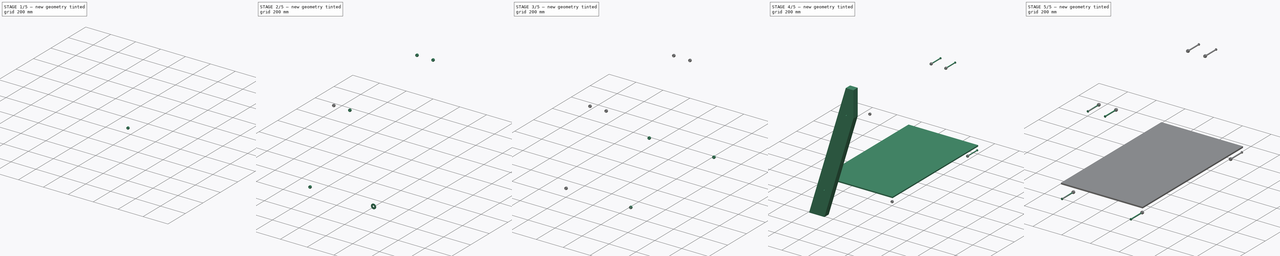
[diagram: build sequence overview — one tinted view per stage of 5, left to right]
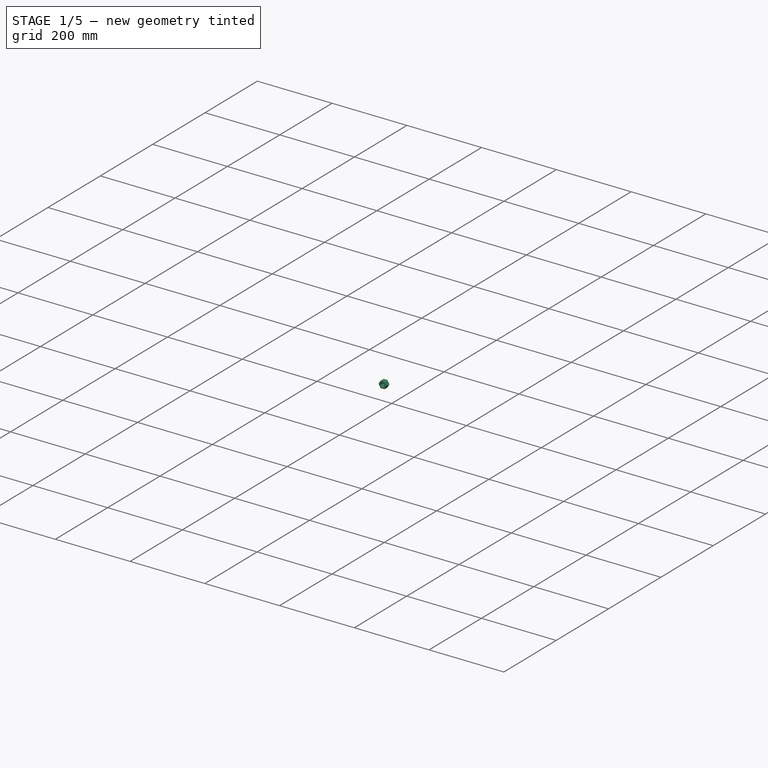
[diagram: stage 1 of 5 — iso view after this stage's code; geometry added in this stage tinted green]
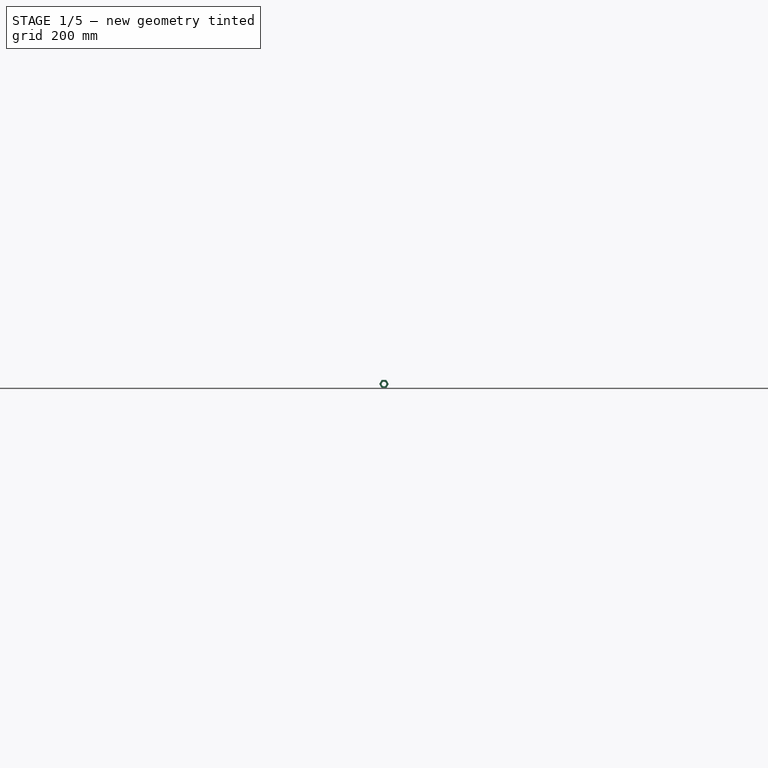
[diagram: stage 1 of 5 — front view after this stage's code; geometry added in this stage tinted green]
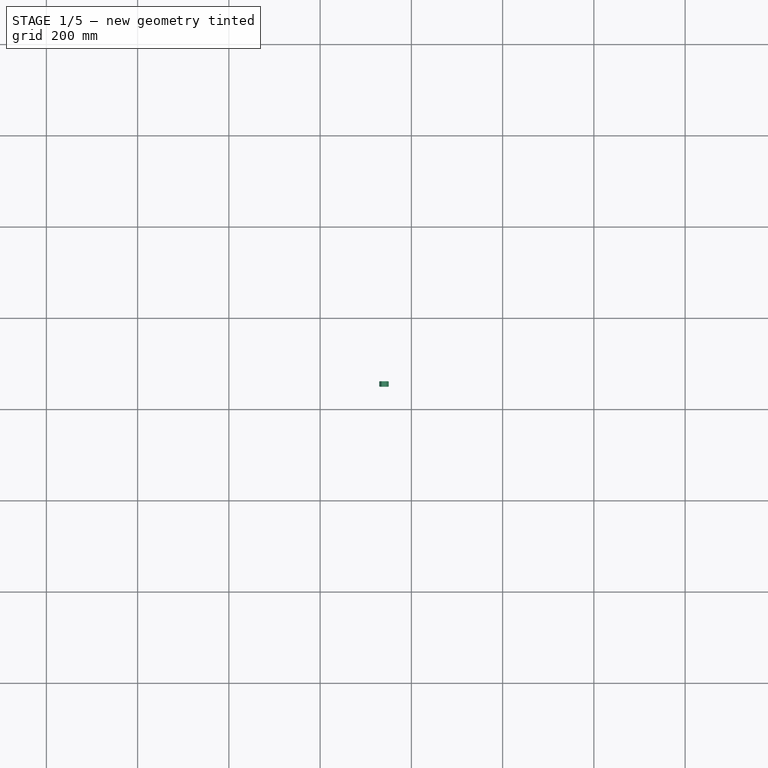
[diagram: stage 1 of 5 — top view after this stage's code; geometry added in this stage tinted green]
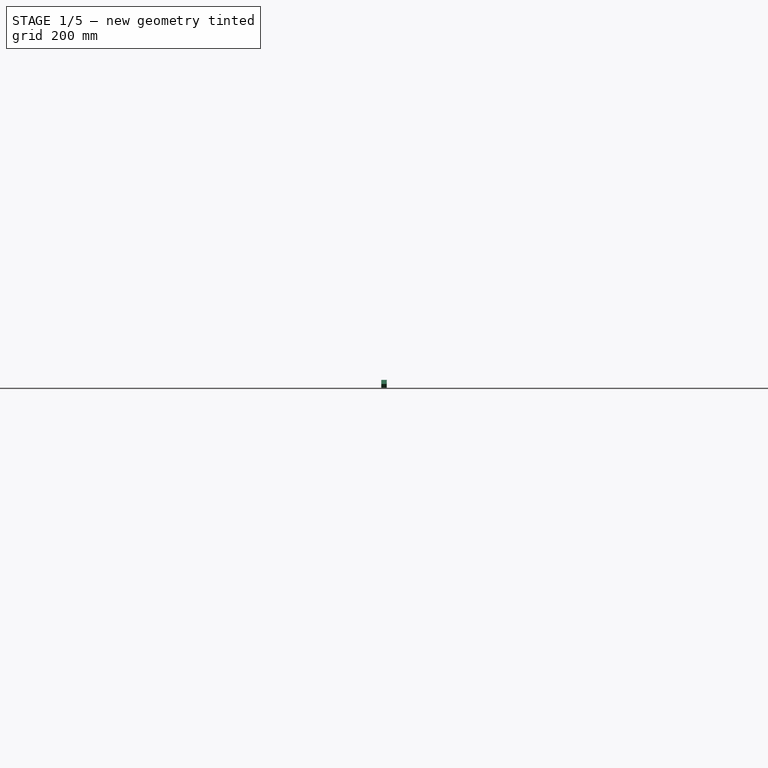
[diagram: stage 1 of 5 — right view after this stage's code; geometry added in this stage tinted green]
FCSTD DOCUMENT  (FreeCAD 0.19R)
Label: CAVALETE-01
License: Creative Commons Attribution-NonCommercial-ShareAlike
LicenseURL: http://creativecommons.org/licenses/by-nc-sa/4.0/
objects: Part::FeaturePython×20, Part::Mirroring×4, Sketcher::SketchObject×3, Part::Extrusion×3, App::FeaturePython×2
note: 30 computed .brp shape members not serialized (recipe doc carries the construction recipe); baked Part::Feature solids carry a one-line shape summary decoded from their .brp

FEATURE [Sketcher::SketchObject] Sketch
  Placement = pos=(0,0,0) rot=(1,0,0;1.5708rad)
  sketch-geometry (15):
    g0: LineSegment StartX=0 StartY=1000 StartZ=0 EndX=-300 EndY=0 EndZ=0
    g1: LineSegment StartX=-300 StartY=0 StartZ=0 EndX=300 EndY=0 EndZ=0
    g2: LineSegment StartX=300 StartY=0 StartZ=0 EndX=0 EndY=1000 EndZ=0
    g3: LineSegment StartX=0 StartY=1000 StartZ=0 EndX=0 EndY=791.194 EndZ=0
    g4: LineSegment StartX=0 StartY=791.194 StartZ=0 EndX=-237.358 EndY=0 EndZ=0
    g5: LineSegment StartX=-237.358 StartY=0 StartZ=0 EndX=-362.642 EndY=0 EndZ=0
    g6: LineSegment StartX=-362.642 StartY=0 StartZ=0 EndX=-62.6418 EndY=1000 EndZ=0
    g7: LineSegment StartX=-150 StartY=500 StartZ=0 EndX=-207.47 EndY=517.241 EndZ=0
    g8: LineSegment StartX=-150 StartY=500 StartZ=0 EndX=-92.5304 EndY=482.759 EndZ=0
    g9: LineSegment StartX=0 StartY=1000 StartZ=0 EndX=-62.6418 EndY=1000 EndZ=0
    g10: LineSegment StartX=-60 StartY=800 StartZ=0 EndX=0 EndY=800 EndZ=0
    g11: LineSegment StartX=0 StartY=791.194 StartZ=0 EndX=0 EndY=0 EndZ=0
    g12: LineSegment StartX=-240 StartY=200 StartZ=0 EndX=0 EndY=200 EndZ=0
    g13: Circle CenterX=-240 CenterY=200 CenterZ=0 NormalX=0 NormalY=0 NormalZ=1 AngleXU=0 Radius=5
    g14: Circle CenterX=-60 CenterY=800 CenterZ=0 NormalX=0 NormalY=0 NormalZ=1 AngleXU=0 Radius=5
  constraints (41):
    c: Coincident(g0,g1)
    c: Horizontal(g1)
    c: Coincident(g1,g2)
    c: Coincident(g2,g0)
    c: Symmetric(g1,g1,g-1)
    c: DistanceY(g1,g0) = 1000
    c: DistanceX(g1,g1) = 600
    c: PointOnObject(g3,g-2)
    c: Coincident(g3,g4)
    c: PointOnObject(g4,g1)
    c: Coincident(g4,g5)
    c: Coincident(g5,g6)
    c: Symmetric(g5,g5,g0)
    c: Parallel(g4,g6)
    c: PointOnObject(g7,g6)
    c: Coincident(g8,g7)
    c: Parallel(g8,g7)
    c: Equal(g7,g8)
    c: Symmetric(g0,g0,g7)
    c: Distance(g8,g7) = 120
    c: Coincident(g9,g0)
    c: Horizontal(g9)
    c: Coincident(g9,g6)
    c: Coincident(g0,g3)
    c: Vertical(g3)
    c: PointOnObject(g8,g4)
    c: PointOnObject(g10,g0)
    c: PointOnObject(g10,g-2)
    c: Horizontal(g10)
    c: Coincident(g11,g3)
    c: Coincident(g11,g-1)
    c: DistanceY(g-1,g10) = 800
    c: PointOnObject(g12,g0)
    c: PointOnObject(g12,g11)
    c: Horizontal(g12)
    c: DistanceY(g-1,g12) = 200
    c: Coincident(g13,g12)
    c: Coincident(g14,g10)
    c: Equal(g14,g13)
    c: Diameter(g13) = 10
    c: Perpendicular(g4,g8)
FEATURE [Part::Extrusion] Extrude
  Base = -> Sketch
  Dir = (0,1,0)
  DirMode = 0
  FaceMakerClass = Part::FaceMakerBullseye
  LengthFwd = 50
  LengthRev = 0
  Solid = true
  Symmetric = false
FEATURE [Part::Mirroring] Part__Mirroring  label="Extrude (Mirror #1)"
  Base = (0,-500,0)
  Normal = (1,0,0)
  Source = -> Extrude
FEATURE [Sketcher::SketchObject] Sketch001
  ExternalGeometry = -> [Extrude,Part__Mirroring]
  MapMode = 5
  Placement = pos=(0,0,0) rot=(1,0,0;1.5708rad)
  Support = -> [Extrude]
  sketch-geometry (19):
    g0: LineSegment StartX=-284.642 StartY=260 StartZ=0 EndX=284.642 EndY=260 EndZ=0
    g1: LineSegment StartX=284.642 StartY=260 StartZ=0 EndX=320.642 EndY=140 EndZ=0
    g2: LineSegment StartX=320.642 StartY=140 StartZ=0 EndX=-320.642 EndY=140 EndZ=0
    g3: LineSegment StartX=-320.642 StartY=140 StartZ=0 EndX=-284.642 EndY=260 EndZ=0
    g4: LineSegment StartX=0.143203 StartY=140 StartZ=0 EndX=0.143203 EndY=260 EndZ=0
    g5: LineSegment StartX=-233.618 StartY=430.079 StartZ=0 EndX=-118.679 EndY=395.597 EndZ=0
    g6: LineSegment StartX=0.143203 StartY=200 StartZ=0 EndX=-240 EndY=200 EndZ=0
    g7: LineSegment StartX=0.143203 StartY=200 StartZ=0 EndX=240 EndY=200 EndZ=0
    g8: LineSegment StartX=-3.85e-14 StartY=860 StartZ=0 EndX=-3.85e-14 EndY=740 EndZ=0
    g9: LineSegment StartX=-60 StartY=800 StartZ=0 EndX=-3.55e-14 EndY=800 EndZ=0
    g10: LineSegment StartX=-3.85e-14 StartY=800 StartZ=0 EndX=60 EndY=800 EndZ=0
    g11: LineSegment StartX=-104.642 StartY=860 StartZ=0 EndX=104.642 EndY=860 EndZ=0
    g12: LineSegment StartX=104.642 StartY=860 StartZ=0 EndX=140.642 EndY=740 EndZ=0
    g13: LineSegment StartX=140.642 StartY=740 StartZ=0 EndX=-140.642 EndY=740 EndZ=0
    g14: LineSegment StartX=-140.642 StartY=740 StartZ=0 EndX=-104.642 EndY=860 EndZ=0
    g15: Circle CenterX=-240 CenterY=200 CenterZ=0 NormalX=0 NormalY=0 NormalZ=1 AngleXU=0 Radius=5
    g16: Circle CenterX=-60 CenterY=800 CenterZ=0 NormalX=0 NormalY=0 NormalZ=1 AngleXU=0 Radius=5
    g17: Circle CenterX=60 CenterY=800 CenterZ=0 NormalX=0 NormalY=0 NormalZ=1 AngleXU=0 Radius=5
    g18: Circle CenterX=240 CenterY=200 CenterZ=0 NormalX=0 NormalY=0 NormalZ=1 AngleXU=0 Radius=5
  constraints (48):
    c: Coincident(g0,g1)
    c: Coincident(g1,g2)
    c: Coincident(g2,g3)
    c: Coincident(g3,g0)
    c: Horizontal(g0)
    c: Horizontal(g2)
    c: PointOnObject(g4,g2)
    c: PointOnObject(g4,g0)
    c: Vertical(g4)
    c: PointOnObject(g5,g-7)
    c: Symmetric(g-9,g-9,g5)
    c: Perpendicular(g-9,g5)
    c: Equal(g5,g4)
    c: PointOnObject(g0,g-7)
    c: Horizontal(g6)
    c: Symmetric(g4,g4,g7)
    c: Symmetric(g4,g4,g6)
    c: Coincident(g6,g-3)
    c: Coincident(g7,g-4)
    c: PointOnObject(g0,g-8)
    c: PointOnObject(g1,g-8)
    c: PointOnObject(g2,g-7)
    c: Vertical(g8)
    c: Coincident(g9,g-5)
    c: Horizontal(g9)
    c: Coincident(g10,g9)
    c: Coincident(g10,g-6)
    c: Symmetric(g8,g8,g9)
    c: Equal(g8,g5)
    c: Coincident(g11,g12)
    c: Coincident(g12,g13)
    c: Coincident(g13,g14)
    c: Coincident(g14,g11)
    c: Horizontal(g11)
    c: Horizontal(g13)
    c: PointOnObject(g11,g-7)
    c: PointOnObject(g13,g-7)
    c: PointOnObject(g11,g-8)
    c: Symmetric(g11,g11,g8)
    c: Symmetric(g13,g13,g8)
    c: Coincident(g15,g6)
    c: Equal(g15,g-3)
    c: Coincident(g16,g9)
    c: Equal(g-5,g16)
    c: Coincident(g17,g10)
    c: Equal(g17,g-6)
    c: Coincident(g18,g7)
    c: Equal(g18,g-4)
FEATURE [Part::Extrusion] Extrude001
  Base = -> Sketch001
  Dir = (0,-1,0)
  DirMode = 0
  FaceMakerClass = Part::FaceMakerBullseye
  LengthFwd = 50
  LengthRev = 0
  Solid = true
  Symmetric = false
FEATURE [Part::Mirroring] Part__Mirroring003  label="Extrude001 (Mirror #4)"
  Base = (0,-500,0)
  Normal = (0,1,0)
  Source = -> Extrude001
FEATURE [Part::FeaturePython] Nut007  label="M12-Nut073"  # Fasteners workbench fastener (typed FeaturePython)
  Placement = pos=(-60,-950,800) rot=(-1,0,0;1.5708rad)
  baseObject = -> Part__Mirroring003 [Edge36]
  diameter = 5
  invert = true
  matchOuter = false
  offset = 0
  thread = false
  type = 8
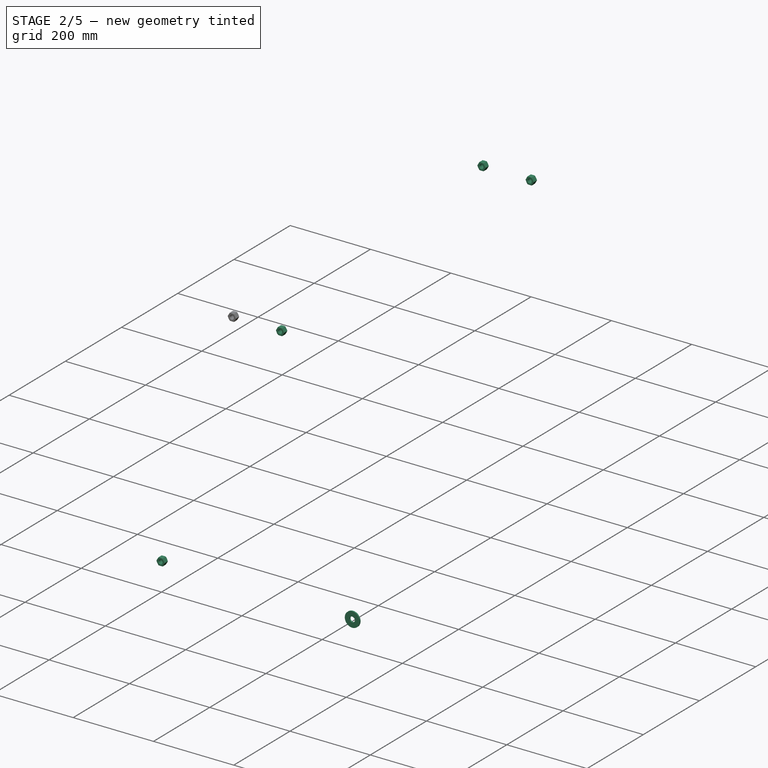
[diagram: stage 2 of 5 — iso view after this stage's code; geometry added in this stage tinted green]
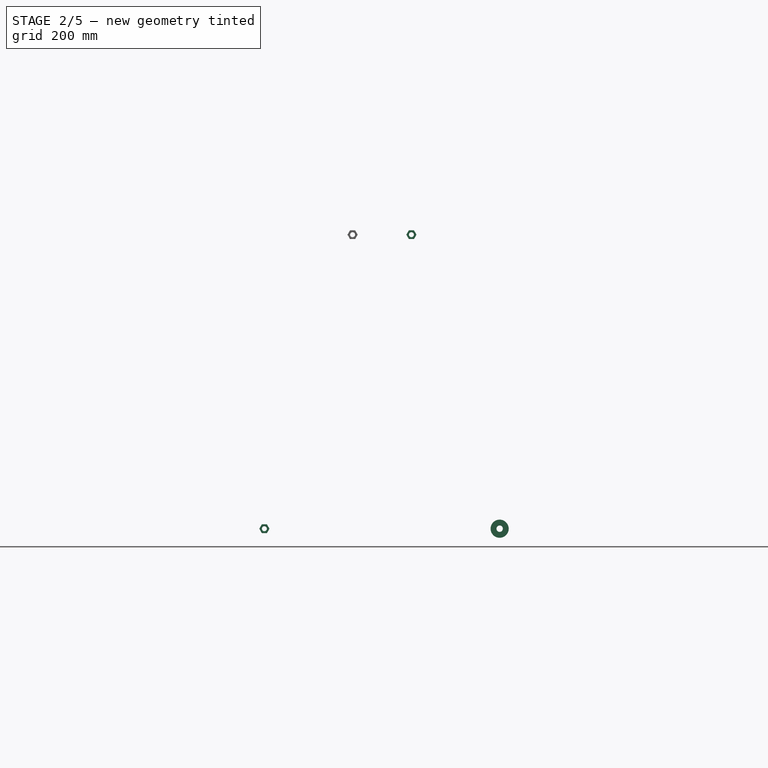
[diagram: stage 2 of 5 — front view after this stage's code; geometry added in this stage tinted green]
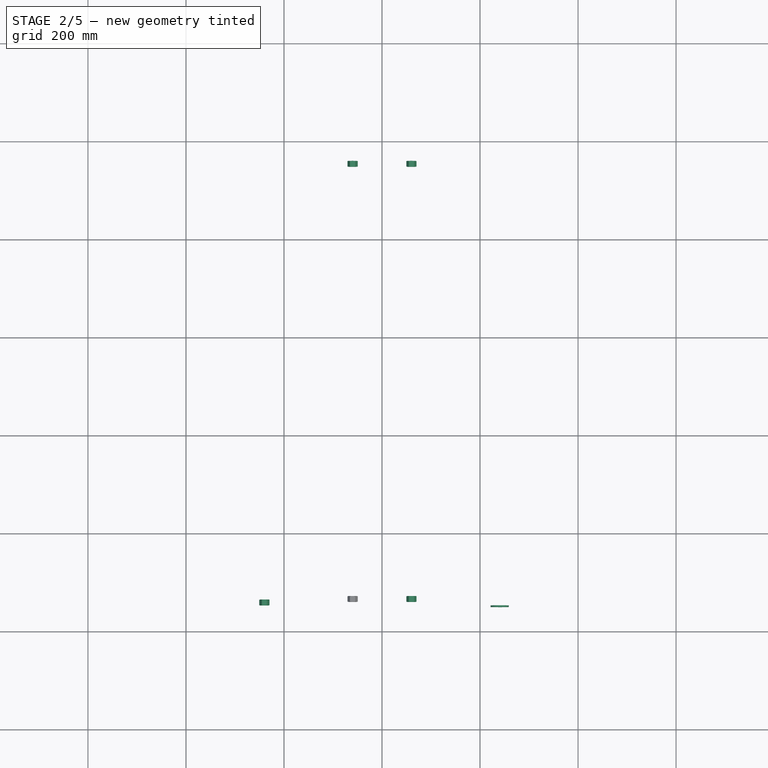
[diagram: stage 2 of 5 — top view after this stage's code; geometry added in this stage tinted green]
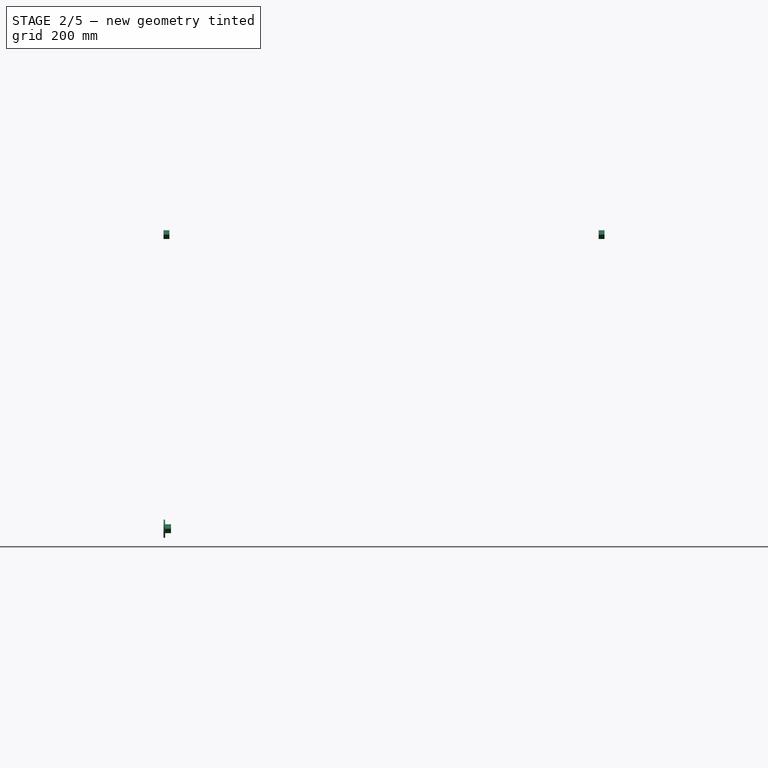
[diagram: stage 2 of 5 — right view after this stage's code; geometry added in this stage tinted green]
FEATURE [App::FeaturePython] Dimension  # Draft dimension (typed FeaturePython)
  Diameter = false
  Dimline = (-284.38,-1050,1000.16)
  Direction = (0,0,0)
  Distance = 1077.03
  End = (0,-1050,1000)
  Normal = (0,-1,-2e-16)
  Start = (-400,-1050,0)
FEATURE [App::FeaturePython] Dimension001  # Draft dimension (typed FeaturePython)
  Diameter = false
  Dimline = (45.6204,-1050,-149.836)
  Direction = (0,0,0)
  Distance = 688.618
  End = (344.309,-1000,220.001)
  Normal = (0,-1,-2e-16)
  Start = (-344.309,-1000,220.001)
FEATURE [Part::FeaturePython] Washer  label="M12-Washer"  # Fasteners workbench fastener (typed FeaturePython)
  Placement = pos=(-240,-950,200) rot=(-1,0,0;1.5708rad)
  baseObject = -> Part__Mirroring003 [Edge18]
  diameter = 8
  invert = true
  matchOuter = false
  offset = 0
  type = 6
FEATURE [Part::FeaturePython] Washer001  label="M12-Washer037"  # Fasteners workbench fastener (typed FeaturePython)
  Placement = pos=(240,-950,200) rot=(-1,0,0;1.5708rad)
  baseObject = -> Part__Mirroring003 [Edge15]
  diameter = 8
  invert = true
  matchOuter = false
  offset = 0
  type = 6
FEATURE [Part::FeaturePython] Nut003  label="M12-Nut069"  # Fasteners workbench fastener (typed FeaturePython)
  Placement = pos=(-240,-946.7,200) rot=(-1,0,0;1.5708rad)
  baseObject = -> Washer [Edge1]
  diameter = 5
  invert = false
  matchOuter = false
  offset = 0
  thread = false
  type = 8
FEATURE [Part::FeaturePython] Nut004  label="M12-Nut070"  # Fasteners workbench fastener (typed FeaturePython)
  Placement = pos=(-60,-50,800) rot=(1,0,0;1.5708rad)
  baseObject = -> Extrude001 [Edge36]
  diameter = 5
  invert = false
  matchOuter = false
  offset = 0
  thread = false
  type = 8
FEATURE [Part::FeaturePython] Nut005  label="M12-Nut071"  # Fasteners workbench fastener (typed FeaturePython)
  Placement = pos=(60,-50,800) rot=(1,0,0;1.5708rad)
  baseObject = -> Extrude001 [Edge33]
  diameter = 5
  invert = false
  matchOuter = false
  offset = 0
  thread = false
  type = 8
FEATURE [Part::FeaturePython] Nut006  label="M12-Nut072"  # Fasteners workbench fastener (typed FeaturePython)
  Placement = pos=(60,-950,800) rot=(-1,0,0;1.5708rad)
  baseObject = -> Part__Mirroring003 [Edge33]
  diameter = 5
  invert = true
  matchOuter = false
  offset = 0
  thread = false
  type = 8
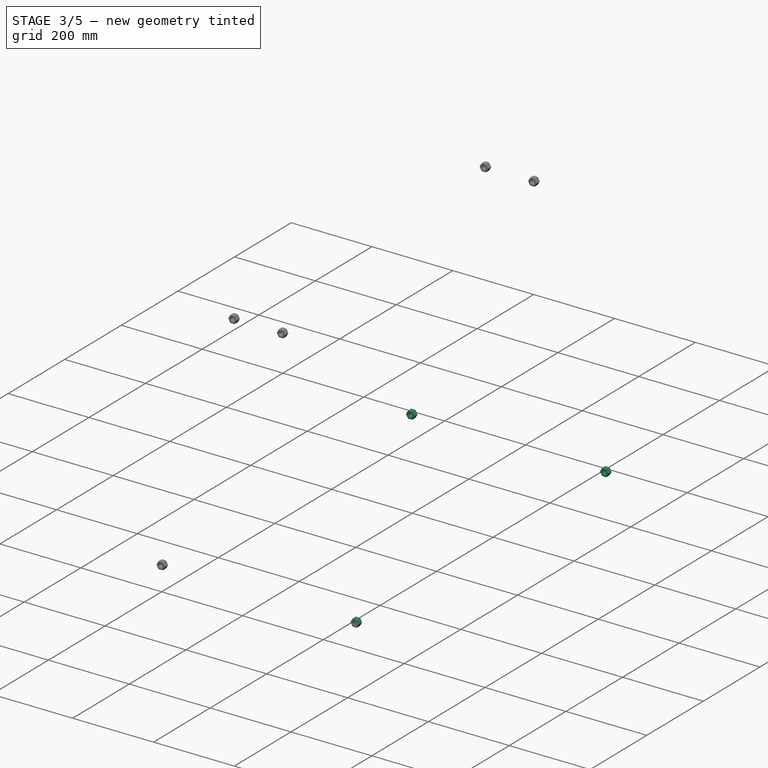
[diagram: stage 3 of 5 — iso view after this stage's code; geometry added in this stage tinted green]
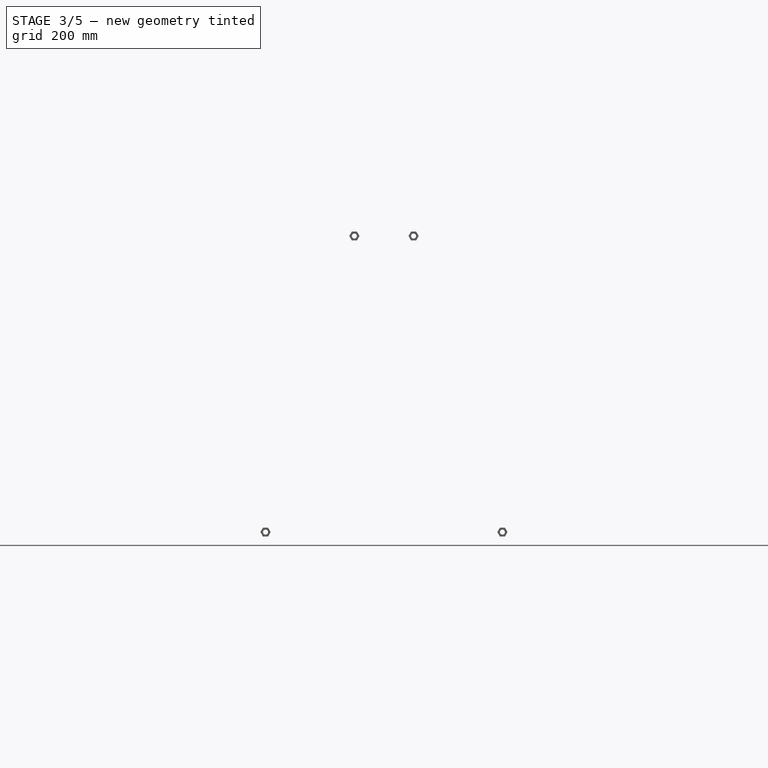
[diagram: stage 3 of 5 — front view after this stage's code; geometry added in this stage tinted green]
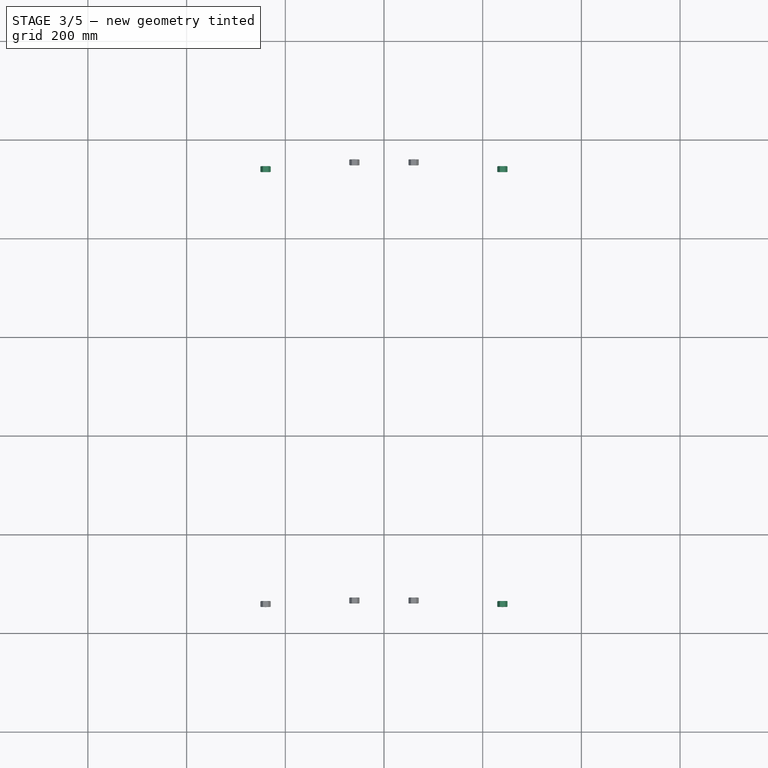
[diagram: stage 3 of 5 — top view after this stage's code; geometry added in this stage tinted green]
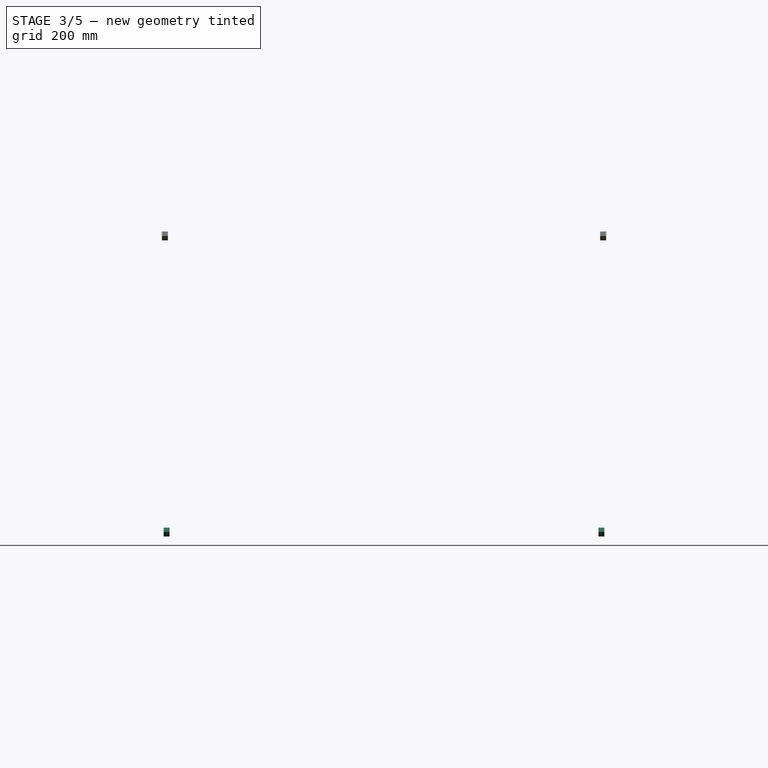
[diagram: stage 3 of 5 — right view after this stage's code; geometry added in this stage tinted green]
FEATURE [Part::FeaturePython] Washer002  label="M12-Washer038"  # Fasteners workbench fastener (typed FeaturePython)
  Placement = pos=(-240,-50,200) rot=(1,0,0;1.5708rad)
  baseObject = -> Extrude001 [Edge18]
  diameter = 8
  invert = false
  matchOuter = false
  offset = 0
  type = 6
FEATURE [Part::FeaturePython] Washer003  label="M12-Washer039"  # Fasteners workbench fastener (typed FeaturePython)
  Placement = pos=(240,-50,200) rot=(1,0,0;1.5708rad)
  baseObject = -> Extrude001 [Edge15]
  diameter = 8
  invert = false
  matchOuter = false
  offset = 0
  type = 6
FEATURE [Part::FeaturePython] Nut  label="M12-Nut"  # Fasteners workbench fastener (typed FeaturePython)
  Placement = pos=(240,-53.3,200) rot=(1,0,0;1.5708rad)
  baseObject = -> Washer003 [Edge1]
  diameter = 5
  invert = false
  matchOuter = false
  offset = 0
  thread = false
  type = 8
FEATURE [Part::FeaturePython] Nut001  label="M12-Nut067"  # Fasteners workbench fastener (typed FeaturePython)
  Placement = pos=(-240,-53.3,200) rot=(1,0,0;1.5708rad)
  baseObject = -> Washer002 [Edge1]
  diameter = 5
  invert = false
  matchOuter = false
  offset = 0
  thread = false
  type = 8
FEATURE [Part::FeaturePython] Nut002  label="M12-Nut068"  # Fasteners workbench fastener (typed FeaturePython)
  Placement = pos=(240,-946.7,200) rot=(-1,0,0;1.5708rad)
  baseObject = -> Washer001 [Edge1]
  diameter = 5
  invert = false
  matchOuter = false
  offset = 0
  thread = false
  type = 8
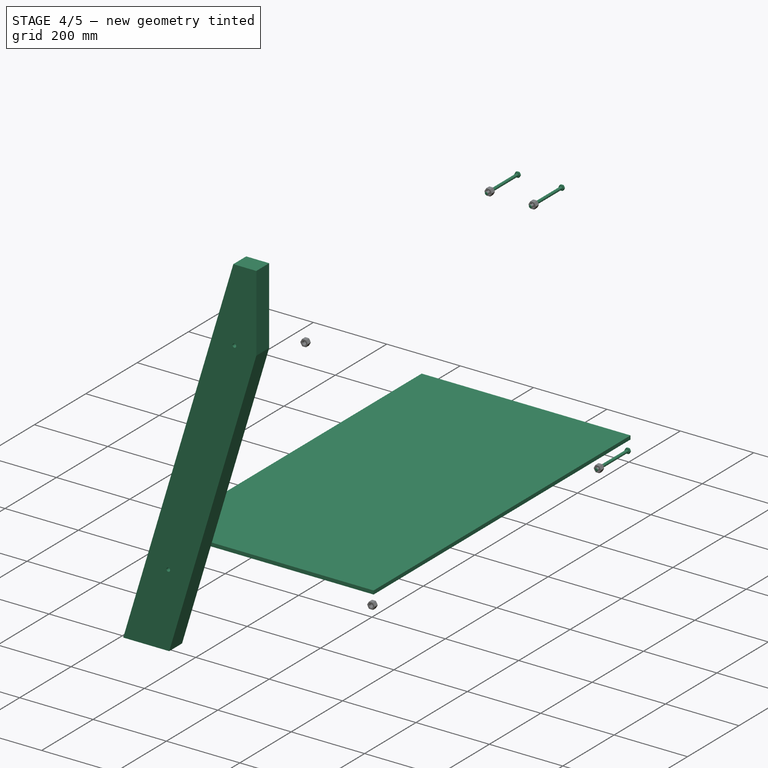
[diagram: stage 4 of 5 — iso view after this stage's code; geometry added in this stage tinted green]
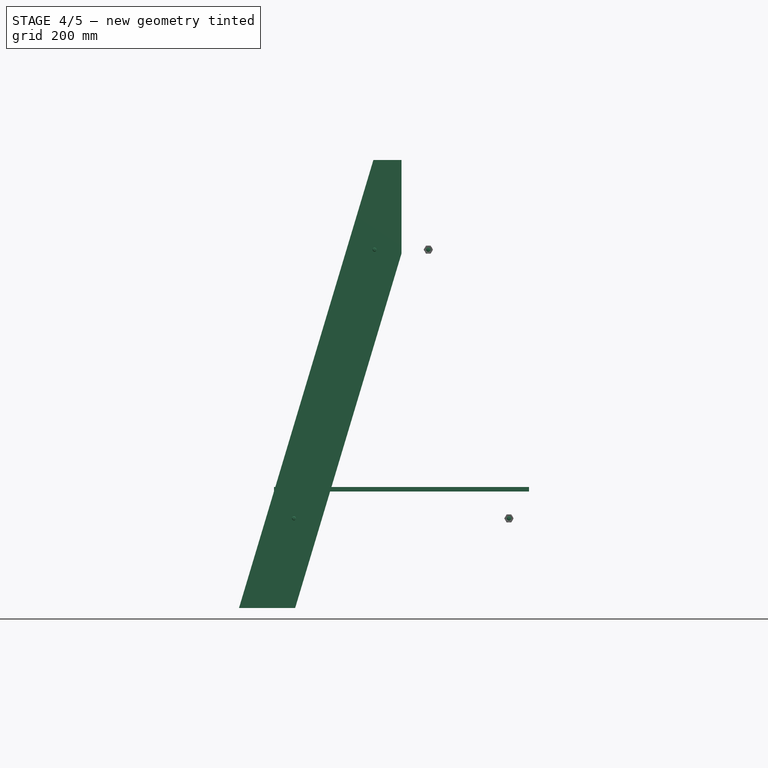
[diagram: stage 4 of 5 — front view after this stage's code; geometry added in this stage tinted green]
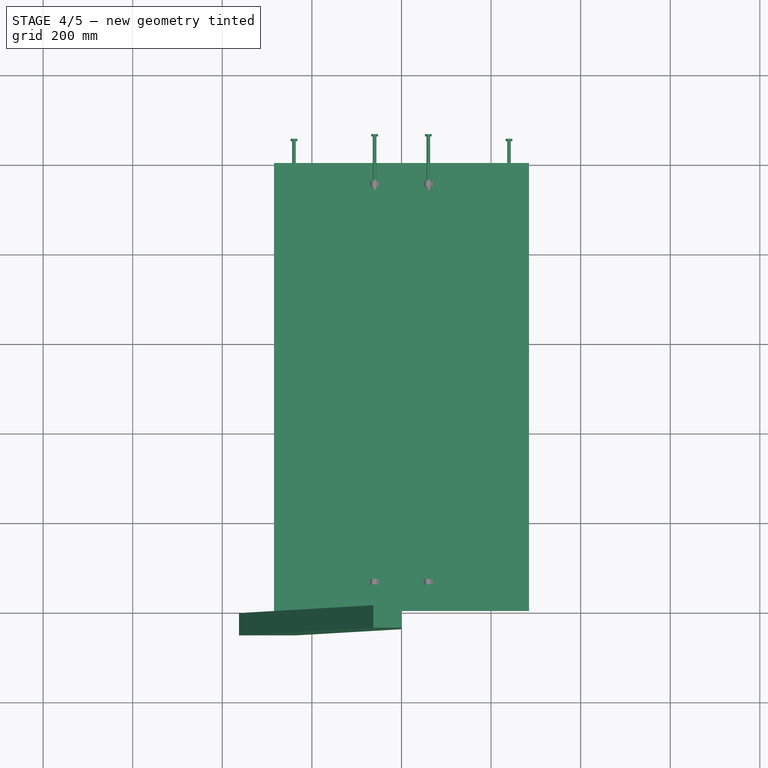
[diagram: stage 4 of 5 — top view after this stage's code; geometry added in this stage tinted green]
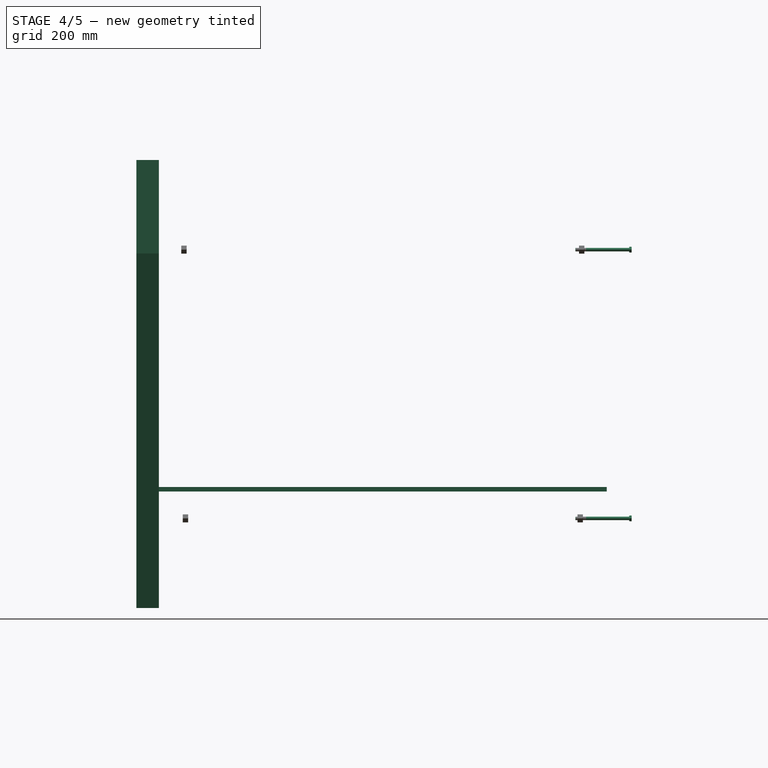
[diagram: stage 4 of 5 — right view after this stage's code; geometry added in this stage tinted green]
FEATURE [Part::Mirroring] Part__Mirroring001  label="Extrude (Mirror #2)"
  Base = (0,-500,0)
  Normal = (0,1,0)
  Source = -> Extrude
FEATURE [Part::FeaturePython] Screw004  label="M8x120-Screw111"  # Fasteners workbench fastener (typed FeaturePython)
  Placement = pos=(60,50,800) rot=(-1,0,0;1.5708rad)
  baseObject = -> Part__Mirroring [Edge18]
  diameter = 9
  invert = false
  length = 12
  lengthCustom = 120
  matchOuter = false
  offset = 0
  thread = false
  type = 26
FEATURE [Part::FeaturePython] Screw005  label="M8x120-Screw112"  # Fasteners workbench fastener (typed FeaturePython)
  Placement = pos=(240,50,200) rot=(-1,0,0;1.5708rad)
  baseObject = -> Part__Mirroring [Edge21]
  diameter = 9
  invert = false
  length = 12
  lengthCustom = 120
  matchOuter = false
  offset = 0
  thread = false
  type = 26
FEATURE [Part::FeaturePython] Screw006  label="M8x120-Screw113"  # Fasteners workbench fastener (typed FeaturePython)
  Placement = pos=(-60,50,800) rot=(-1,0,0;1.5708rad)
  baseObject = -> Extrude [Edge18]
  diameter = 9
  invert = true
  length = 12
  lengthCustom = 120
  matchOuter = false
  offset = 0
  thread = false
  type = 26
FEATURE [Part::FeaturePython] Screw007  label="M8x120-Screw114"  # Fasteners workbench fastener (typed FeaturePython)
  Placement = pos=(-240,50,200) rot=(-1,0,0;1.5708rad)
  baseObject = -> Extrude [Edge21]
  diameter = 9
  invert = true
  length = 12
  lengthCustom = 120
  matchOuter = false
  offset = 0
  thread = false
  type = 26
FEATURE [Sketcher::SketchObject] Sketch002
  ExternalGeometry = -> [Part__Mirroring003,Extrude001]
  MapMode = 5
  Placement = pos=(0,0,260) rot=(0,0,1;0rad)
  Support = -> [Part__Mirroring003]
  sketch-geometry (5):
    g0: LineSegment StartX=-284.642 StartY=5.77e-14 StartZ=0 EndX=284.642 EndY=5.77e-14 EndZ=0
    g1: LineSegment StartX=284.642 StartY=5.77e-14 StartZ=0 EndX=284.642 EndY=-1000 EndZ=0
    g2: LineSegment StartX=284.642 StartY=-1000 StartZ=0 EndX=-284.642 EndY=-1000 EndZ=0
    g3: LineSegment StartX=-284.642 StartY=-1000 StartZ=0 EndX=-284.642 EndY=1.137e-13 EndZ=0
    g4: LineSegment StartX=1.36e-14 StartY=5.77e-14 StartZ=0 EndX=1.36e-14 EndY=-1000 EndZ=0
  constraints (13):
    c: Coincident(g0,g1)
    c: Coincident(g1,g2)
    c: Coincident(g2,g3)
    c: Coincident(g3,g0)
    c: Horizontal(g0)
    c: Horizontal(g2)
    c: Vertical(g1)
    c: Vertical(g3)
    c: Coincident(g1,g-5)
    c: Coincident(g0,g-7)
    c: PointOnObject(g4,g0)
    c: Vertical(g4)
    c: Symmetric(g2,g2,g4)
FEATURE [Part::Extrusion] Extrude002
  Base = -> Sketch002
  Dir = (0,0,1)
  DirMode = 2
  FaceMakerClass = Part::FaceMakerBullseye
  LengthFwd = 10
  LengthRev = 0
  Solid = true
  Symmetric = false
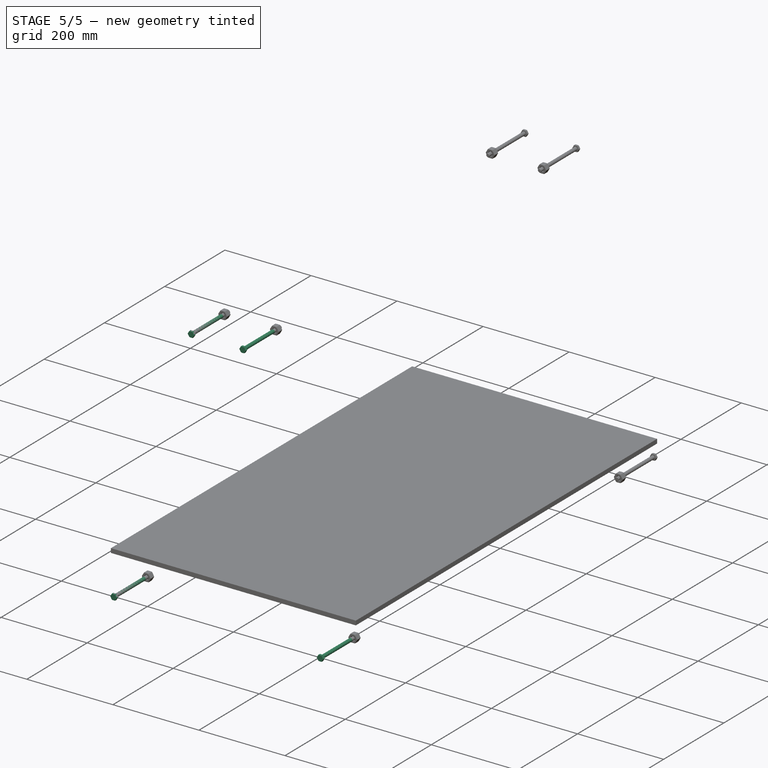
[diagram: stage 5 of 5 — iso view after this stage's code; geometry added in this stage tinted green]
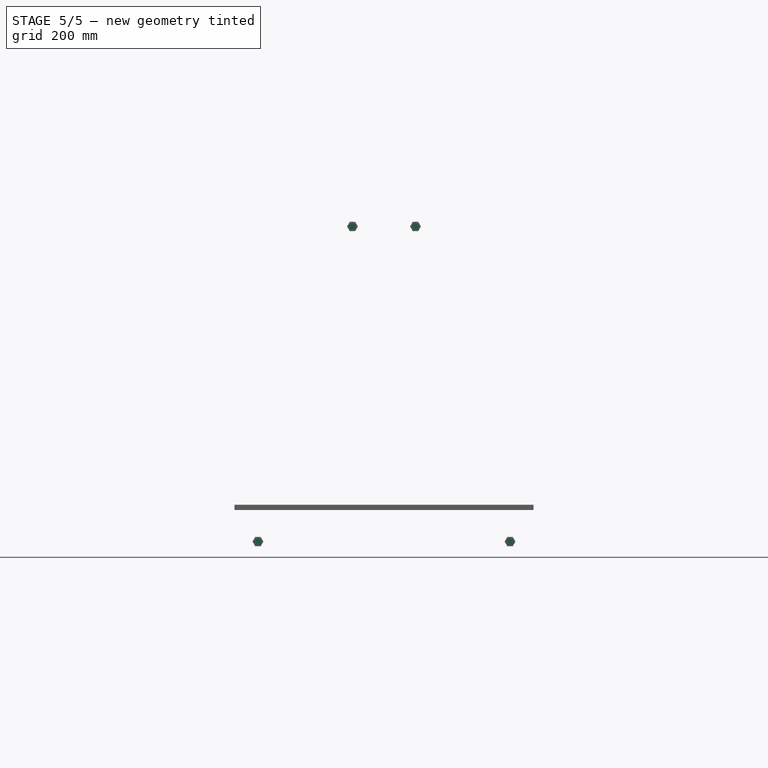
[diagram: stage 5 of 5 — front view after this stage's code; geometry added in this stage tinted green]
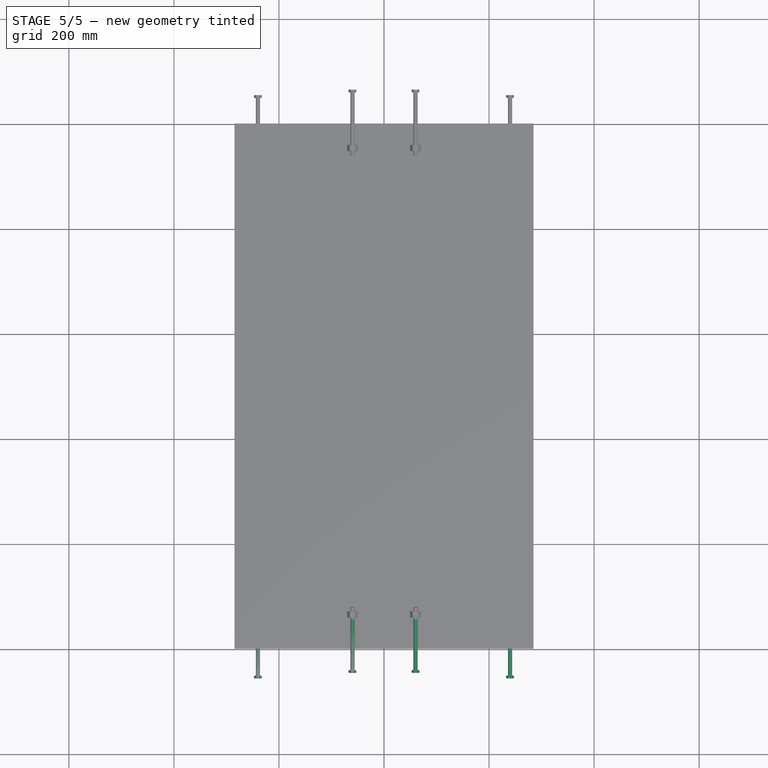
[diagram: stage 5 of 5 — top view after this stage's code; geometry added in this stage tinted green]
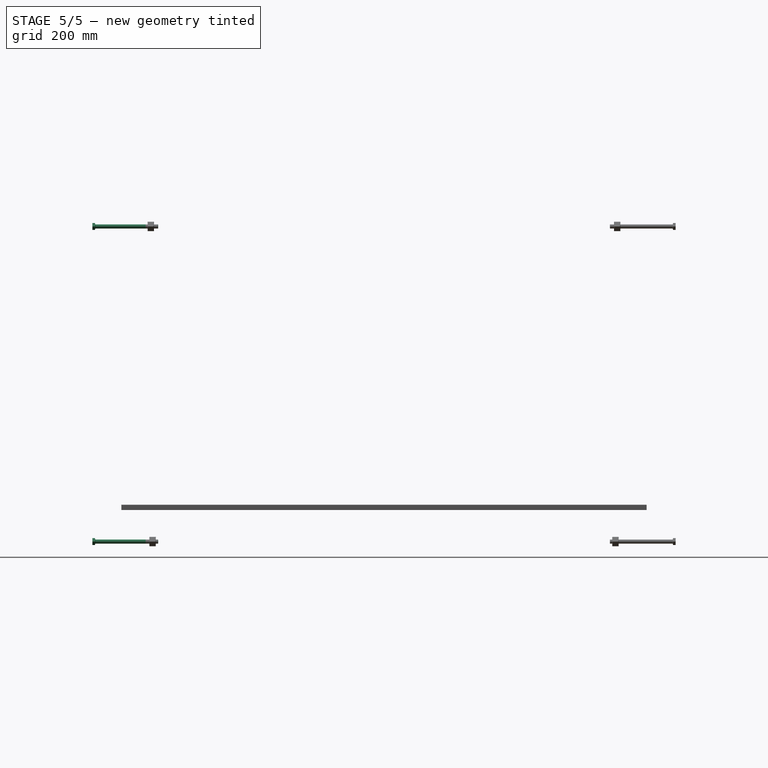
[diagram: stage 5 of 5 — right view after this stage's code; geometry added in this stage tinted green]
FEATURE [Part::Mirroring] Part__Mirroring002  label="Extrude (Mirror #3)"
  Base = (0,-500,0)
  Normal = (0,1,0)
  Source = -> Part__Mirroring
FEATURE [Part::FeaturePython] Screw  label="M8x120-Screw"  # Fasteners workbench fastener (typed FeaturePython)
  Placement = pos=(240,-1050,200) rot=(1,0,0;1.5708rad)
  baseObject = -> Part__Mirroring002 [Edge21]
  diameter = 9
  invert = true
  length = 12
  lengthCustom = 120
  matchOuter = false
  offset = 0
  thread = false
  type = 26
FEATURE [Part::FeaturePython] Screw001  label="M8x120-Screw108"  # Fasteners workbench fastener (typed FeaturePython)
  Placement = pos=(60,-1050,800) rot=(1,0,0;1.5708rad)
  baseObject = -> Part__Mirroring002 [Edge18]
  diameter = 9
  invert = true
  length = 12
  lengthCustom = 120
  matchOuter = false
  offset = 0
  thread = false
  type = 26
FEATURE [Part::FeaturePython] Screw002  label="M8x120-Screw109"  # Fasteners workbench fastener (typed FeaturePython)
  Placement = pos=(-240,-1050,200) rot=(1,0,0;1.5708rad)
  baseObject = -> Part__Mirroring001 [Edge21]
  diameter = 9
  invert = false
  length = 12
  lengthCustom = 120
  matchOuter = false
  offset = 0
  thread = false
  type = 26
FEATURE [Part::FeaturePython] Screw003  label="M8x120-Screw110"  # Fasteners workbench fastener (typed FeaturePython)
  Placement = pos=(-60,-1050,800) rot=(1,0,0;1.5708rad)
  baseObject = -> Part__Mirroring001 [Edge18]
  diameter = 9
  invert = false
  length = 12
  lengthCustom = 120
  matchOuter = false
  offset = 0
  thread = false
  type = 26
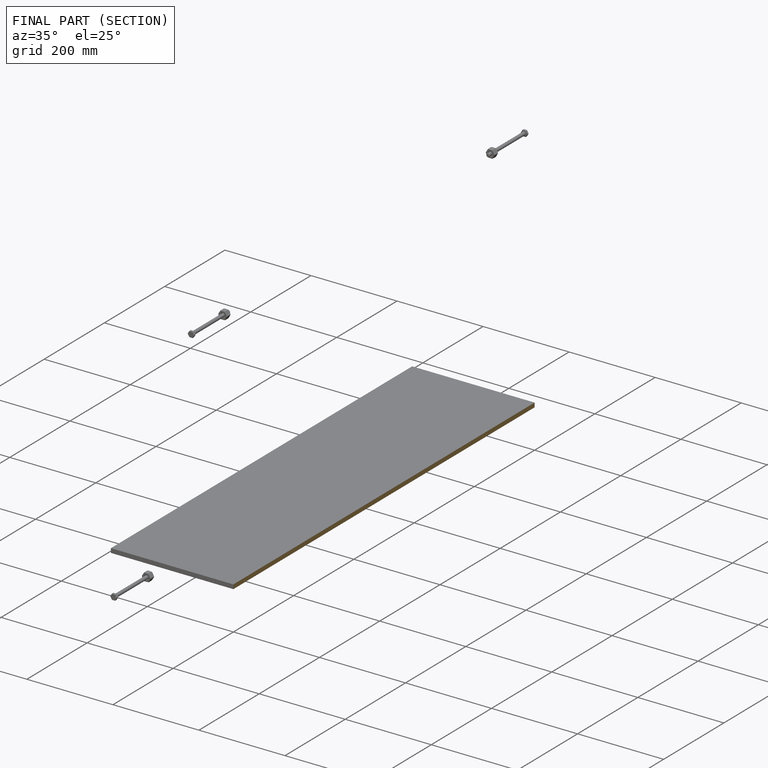
[diagram: finished part — half-section view (interior)]
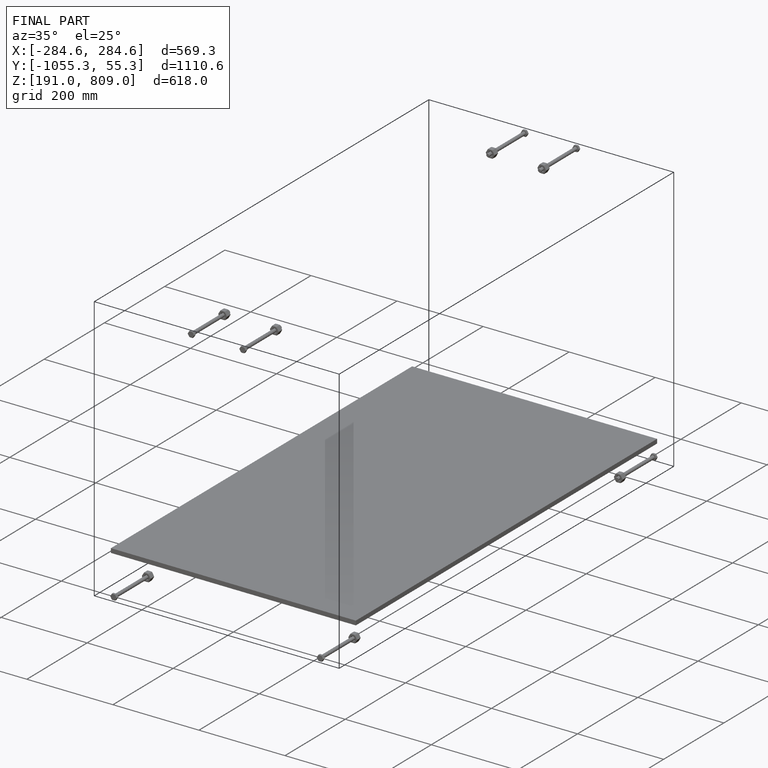
[diagram: finished part — iso view with bounding-box wireframe]
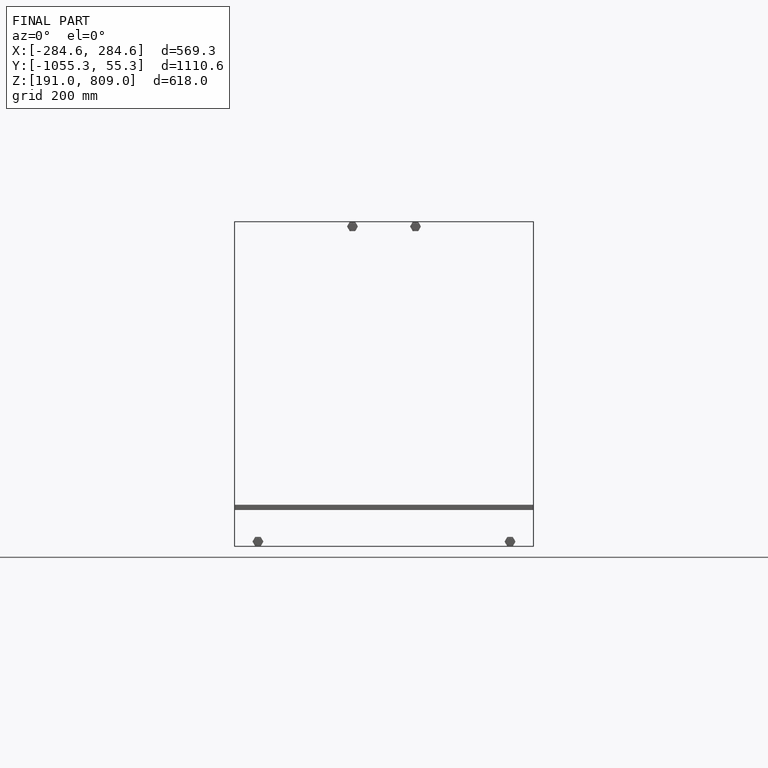
[diagram: finished part — front view with bounding-box wireframe]
